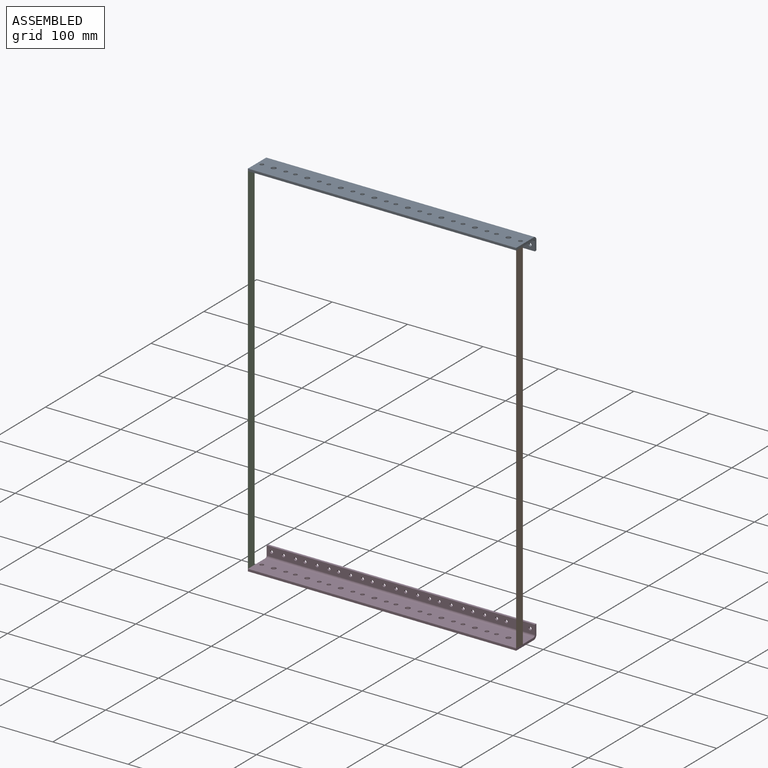
[diagram: assembled view]
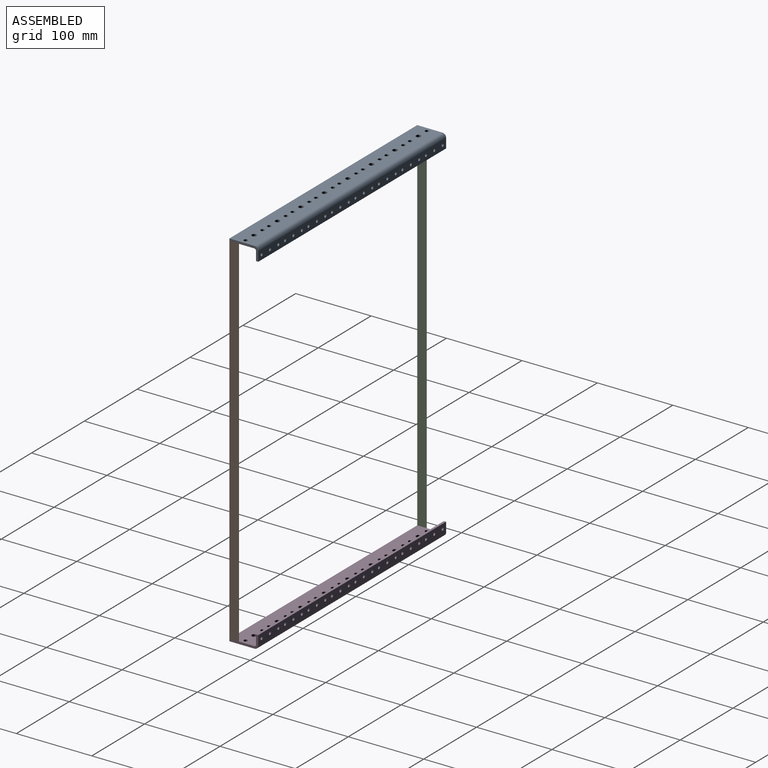
[diagram: assembled view, second angle]
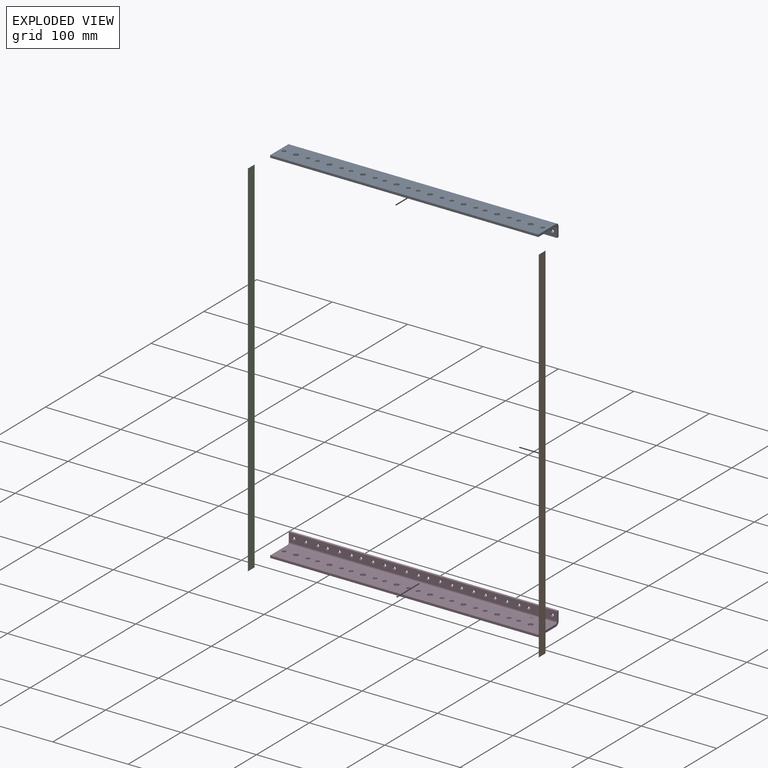
[diagram: exploded view]
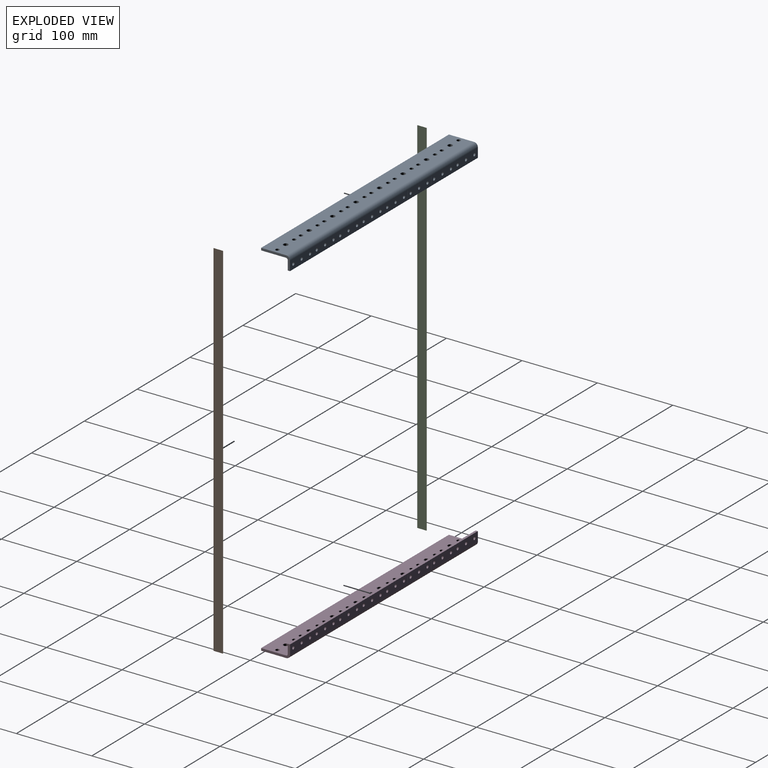
[diagram: exploded view, second angle]
ASSEMBLY  parts=4 mates=3
PART A: 97 faces, bbox 38.4x17.6x355.6 mm
  f0: plane 355.6x12.57mm, normal (-1,0,0), area 4111.5mm2, adj f4,f5,f6,f8,f10,f11,f12,f13
  f1: plane 355.6x32.81mm, normal (0,1,0), area 11091mm2, adj f3,f4,f5,f9,f34,f35,f36,f37
  f2: plane 355.6x33.27mm, normal (0,-1,0), area 11254.6mm2, adj f3,f4,f5,f8,f34,f35,f36,f37
  f3: plane 355.6x3.05mm, normal (1,0,0), area 1083.9mm2, adj f1,f2,f4,f5
  f4: plane 38.35x17.65mm, normal (0,0,1), area 156.5mm2, adj f0,f1,f2,f3,f6,f7,f8,f9
  f5: plane 38.35x17.65mm, normal (0,0,-1), area 156mm2, adj f0,f1,f2,f3,f6,f7,f8,f9
  f6: plane 355.6x3mm, normal (0,1,0), area 1066.8mm2, adj f0,f4,f5,f7
  f7: plane 355.6x12.06mm, normal (1,0,0), area 3981.1mm2, adj f4,f5,f6,f9,f10,f11,f12,f13
  f8: cylinder r=5.08mm len=355.6mm, axis (0,0,-1), area 2837.6mm2, adj f0,f2,f4,f5
  f9: cylinder r=2.54mm len=355.6mm, axis (0,0,1), area 1418.8mm2, adj f1,f4,f5,f7
  f10: cylinder r=2.02mm len=4.04mm, axis (-1,0,0), area 38.1mm2, adj f0,f7
  f11: cylinder r=2.02mm len=4.04mm, axis (-1,0,0), area 38.1mm2, adj f0,f7
  f12: cylinder r=2.02mm len=4.04mm, axis (-1,0,0), area 38.1mm2, adj f0,f7
  f13: cylinder r=2.02mm len=4.04mm, axis (-1,0,0), area 38.1mm2, adj f0,f7
  f14: cylinder r=2.02mm len=4.04mm, axis (-1,0,0), area 38.1mm2, adj f0,f7
  f15: cylinder r=2.02mm len=4.04mm, axis (-1,0,0), area 38.1mm2, adj f0,f7
  f16: cylinder r=2.02mm len=4.04mm, axis (-1,0,0), area 38.1mm2, adj f0,f7
  f17: cylinder r=2.02mm len=4.04mm, axis (-1,0,0), area 38.1mm2, adj f0,f7
  f18: cylinder r=2.02mm len=4.04mm, axis (-1,0,0), area 38.1mm2, adj f0,f7
  f19: cylinder r=2.02mm len=4.04mm, axis (-1,0,0), area 38.1mm2, adj f0,f7
  f20: cylinder r=2.02mm len=4.04mm, axis (-1,0,0), area 38.1mm2, adj f0,f7
  f21: cylinder r=2.02mm len=4.04mm, axis (-1,0,0), area 38.1mm2, adj f0,f7
  f22: cylinder r=2.02mm len=4.04mm, axis (-1,0,0), area 38.1mm2, adj f0,f7
  f23: cylinder r=2.02mm len=4.04mm, axis (-1,0,0), area 38.1mm2, adj f0,f7
  f24: cylinder r=2.02mm len=4.04mm, axis (-1,0,0), area 38.1mm2, adj f0,f7
  f25: cylinder r=2.02mm len=4.04mm, axis (-1,0,0), area 38.1mm2, adj f0,f7
  f26: cylinder r=2.02mm len=4.04mm, axis (-1,0,0), area 38.1mm2, adj f0,f7
  f27: cylinder r=2.02mm len=4.04mm, axis (-1,0,0), area 38.1mm2, adj f0,f7
  f28: cylinder r=2.02mm len=4.04mm, axis (-1,0,0), area 38.1mm2, adj f0,f7
  f29: cylinder r=2.02mm len=4.04mm, axis (-1,0,0), area 38.1mm2, adj f0,f7
  f30: cylinder r=2.02mm len=4.04mm, axis (-1,0,0), area 38.1mm2, adj f0,f7
  f31: cylinder r=2.02mm len=4.04mm, axis (-1,0,0), area 38.1mm2, adj f0,f7
  f32: cylinder r=2.02mm len=4.04mm, axis (-1,0,0), area 38.1mm2, adj f0,f7
  f33: cylinder r=2.02mm len=4.04mm, axis (-1,0,0), area 38.1mm2, adj f0,f7
  f34: cylinder r=2.54mm len=5.08mm, axis (0,-1,0), area 48.6mm2, adj f1,f2
  f35: cylinder r=2.54mm len=5.08mm, axis (0,-1,0), area 48.6mm2, adj f1,f2
  f36: cylinder r=3.17mm len=6.35mm, axis (0,-1,0), area 60.8mm2, adj f1,f2
  f37: cylinder r=2.54mm len=5.08mm, axis (0,-1,0), area 48.6mm2, adj f1,f2
  f38: cylinder r=2.54mm len=5.08mm, axis (0,-1,0), area 48.6mm2, adj f1,f2
  f39: cylinder r=2.54mm len=5.08mm, axis (0,-1,0), area 48.6mm2, adj f1,f2
  f40: cylinder r=2.54mm len=5.08mm, axis (0,-1,0), area 48.6mm2, adj f1,f2
  f41: cylinder r=2.54mm len=5.08mm, axis (0,-1,0), area 48.6mm2, adj f1,f2
  f42: cylinder r=2.54mm len=5.08mm, axis (0,-1,0), area 48.6mm2, adj f1,f2
  f43: cylinder r=2.54mm len=5.08mm, axis (0,-1,0), area 48.6mm2, adj f1,f2
  f44: cylinder r=2.54mm len=5.08mm, axis (0,-1,0), area 48.6mm2, adj f1,f2
  f45: cylinder r=2.54mm len=5.08mm, axis (0,-1,0), area 48.6mm2, adj f1,f2
  f46: cylinder r=2.54mm len=5.08mm, axis (0,-1,0), area 48.6mm2, adj f1,f2
  f47: cylinder r=2.54mm len=5.08mm, axis (0,-1,0), area 48.6mm2, adj f1,f2
  f48: cylinder r=2.54mm len=5.08mm, axis (0,-1,0), area 48.6mm2, adj f1,f2
  f49: cylinder r=2.54mm len=5.08mm, axis (0,-1,0), area 48.6mm2, adj f1,f2
  f50: cylinder r=2.54mm len=5.08mm, axis (0,-1,0), area 48.6mm2, adj f1,f2
  f51: cylinder r=3.17mm len=6.35mm, axis (0,-1,0), area 60.8mm2, adj f1,f2
  f52: cylinder r=3.17mm len=6.35mm, axis (0,-1,0), area 60.8mm2, adj f1,f2
  f53: cylinder r=3.17mm len=6.35mm, axis (0,-1,0), area 60.8mm2, adj f1,f2
  f54: cylinder r=3.17mm len=6.35mm, axis (0,-1,0), area 60.8mm2, adj f1,f2
  f55: cylinder r=3.17mm len=6.35mm, axis (0,-1,0), area 60.8mm2, adj f1,f2
  f56: cylinder r=3.17mm len=6.35mm, axis (0,-1,0), area 60.8mm2, adj f1,f2
  f57: cylinder r=3.17mm len=6.35mm, axis (0,-1,0), area 60.8mm2, adj f1,f2
  f58: plane 10.54x0.05mm, normal (0,0,1), area 0.5mm2, adj f0,f59,f61,f62
  f59: plane 0.64x0.05mm, normal (0,1,0), area 0mm2, adj f0,f58,f60,f62
  f60: plane 10.54x0.05mm, normal (0,0,-1), area 0.5mm2, adj f0,f59,f61,f62
  f61: plane 0.64x0.05mm, normal (0,-1,0), area 0mm2, adj f0,f58,f60,f62
  f62: plane 10.54x0.64mm, normal (-1,0,0), area 6.7mm2, adj f58,f59,f60,f61
  f63: plane 10.54x0.05mm, normal (0,0,1), area 0.5mm2, adj f0,f64,f66,f67
  f64: plane 0.64x0.05mm, normal (0,1,0), area 0mm2, adj f0,f63,f65,f67
  f65: plane 10.54x0.05mm, normal (0,0,-1), area 0.5mm2, adj f0,f64,f66,f67
  f66: plane 0.64x0.05mm, normal (0,-1,0), area 0mm2, adj f0,f63,f65,f67
  f67: plane 10.54x0.64mm, normal (-1,0,0), area 6.7mm2, adj f63,f64,f65,f66
  f68: plane 10.54x0.05mm, normal (0,0,1), area 0.5mm2, adj f0,f69,f71,f72
  f69: plane 0.64x0.05mm, normal (0,1,0), area 0mm2, adj f0,f68,f70,f72
  f70: plane 10.54x0.05mm, normal (0,0,-1), area 0.5mm2, adj f0,f69,f71,f72
  f71: plane 0.64x0.05mm, normal (0,-1,0), area 0mm2, adj f0,f68,f70,f72
  f72: plane 10.54x0.64mm, normal (-1,0,0), area 6.7mm2, adj f68,f69,f70,f71
  f73: plane 10.54x0.05mm, normal (0,0,1), area 0.5mm2, adj f0,f74,f76,f77
  f74: plane 0.64x0.05mm, normal (0,1,0), area 0mm2, adj f0,f73,f75,f77
  f75: plane 10.54x0.05mm, normal (0,0,-1), area 0.5mm2, adj f0,f74,f76,f77
  f76: plane 0.64x0.05mm, normal (0,-1,0), area 0mm2, adj f0,f73,f75,f77
  f77: plane 10.54x0.64mm, normal (-1,0,0), area 6.7mm2, adj f73,f74,f75,f76
  f78: plane 10.54x0.05mm, normal (0,0,1), area 0.5mm2, adj f0,f79,f81,f82
  f79: plane 0.64x0.05mm, normal (0,1,0), area 0mm2, adj f0,f78,f80,f82
  f80: plane 10.54x0.05mm, normal (0,0,-1), area 0.5mm2, adj f0,f79,f81,f82
  f81: plane 0.64x0.05mm, normal (0,-1,0), area 0mm2, adj f0,f78,f80,f82
  f82: plane 10.54x0.64mm, normal (-1,0,0), area 6.7mm2, adj f78,f79,f80,f81
  f83: plane 10.54x0.05mm, normal (0,0,1), area 0.5mm2, adj f0,f84,f86,f87
  f84: plane 0.64x0.05mm, normal (0,1,0), area 0mm2, adj f0,f83,f85,f87
  f85: plane 10.54x0.05mm, normal (0,0,-1), area 0.5mm2, adj f0,f84,f86,f87
  f86: plane 0.64x0.05mm, normal (0,-1,0), area 0mm2, adj f0,f83,f85,f87
  f87: plane 10.54x0.64mm, normal (-1,0,0), area 6.7mm2, adj f83,f84,f85,f86
  f88: plane 10.54x0.05mm, normal (0,0,1), area 0.5mm2, adj f0,f89,f91,f92
  f89: plane 0.64x0.05mm, normal (0,1,0), area 0mm2, adj f0,f88,f90,f92
  f90: plane 10.54x0.05mm, normal (0,0,-1), area 0.5mm2, adj f0,f89,f91,f92
  f91: plane 0.64x0.05mm, normal (0,-1,0), area 0mm2, adj f0,f88,f90,f92
  f92: plane 10.54x0.64mm, normal (-1,0,0), area 6.7mm2, adj f88,f89,f90,f91
  f93: plane 0.32x0.05mm, normal (0,1,0), area 0mm2, adj f0,f5,f95,f96
  f94: plane 0.32x0.05mm, normal (0,-1,0), area 0mm2, adj f0,f5,f95,f96
  f95: plane 10.54x0.32mm, normal (-1,0,0), area 3.3mm2, adj f5,f93,f94,f96
  f96: plane 10.54x0.05mm, normal (0,0,-1), area 0.5mm2, adj f0,f93,f94,f95
PART B: 6 faces, bbox 0x482.6x12.7 mm
  f0: plane 12.7x0.03mm, normal (0,1,0), area 0.3mm2, adj f1,f3,f4,f5
  f1: plane 482.6x12.7mm, normal (-1,0,0), area 6129mm2, adj f0,f2,f4,f5
  f2: plane 12.7x0.03mm, normal (0,-1,0), area 0.3mm2, adj f1,f3,f4,f5
  f3: plane 482.6x12.7mm, normal (1,0,0), area 6129mm2, adj f0,f2,f4,f5
  f4: plane 482.6x0.03mm, normal (0,0,1), area 12.3mm2, adj f0,f1,f2,f3
  f5: plane 482.6x0.03mm, normal (0,0,-1), area 12.3mm2, adj f0,f1,f2,f3
PART C: same geometry as B
PART D: same geometry as A
PLACE A rot(axis=(-0.58,0.58,-0.58),120deg) t=(-66.68,-35.35,471.24)mm
PLACE B rot(axis=(1,0,0),90deg) t=(303.59,-22.65,2.12)mm
PLACE C rot(axis=(0,-0.71,0.71),180deg) t=(-81.36,-22.65,457.75)mm
PLACE D rot(axis=(0.58,-0.58,-0.58),120deg) t=(288.92,-35.35,-11.36)mm
MATE fastened C.f4 <-> D.f3  axis (0,-1,0) through (-66.68,-35.35,-11.36)mm
MATE fastened B.f3 <-> D.f5  axis (1,0,0) through (288.92,-35.35,-11.36)mm
MATE fastened C.f4 <-> A.f3  axis (0,-1,0) through (-66.68,-35.35,471.24)mm
